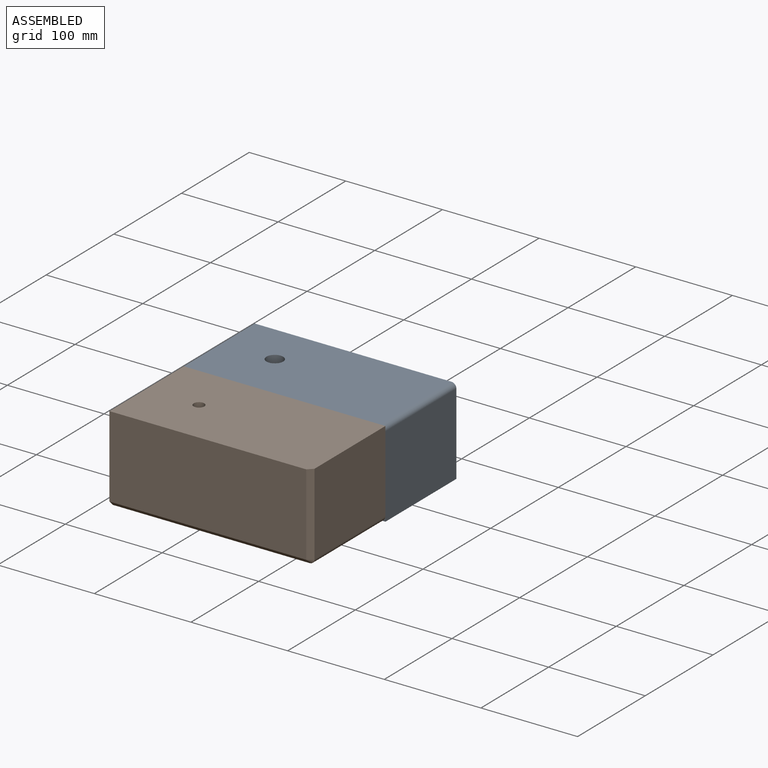
[diagram: assembled view]
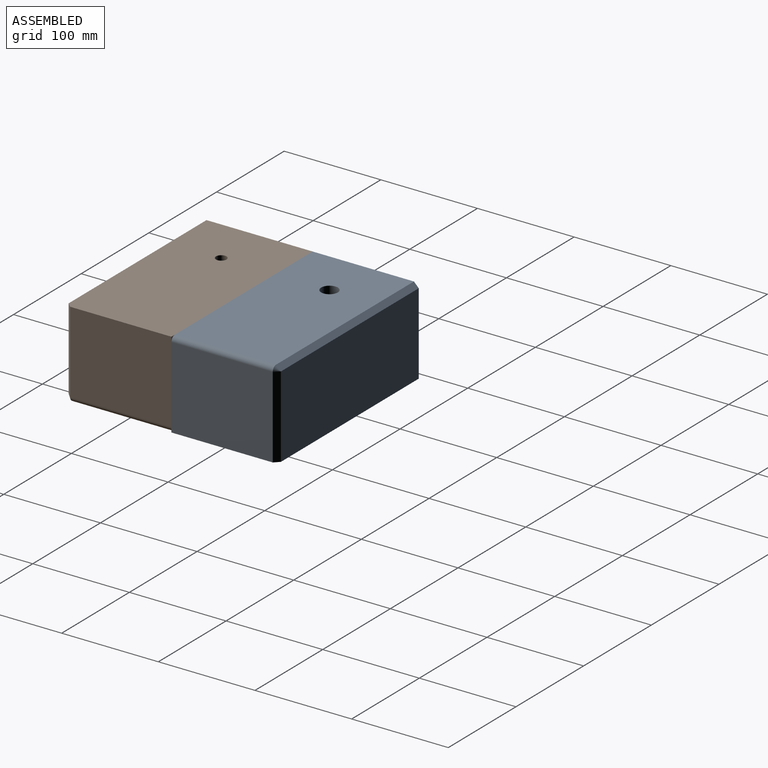
[diagram: assembled view, second angle]
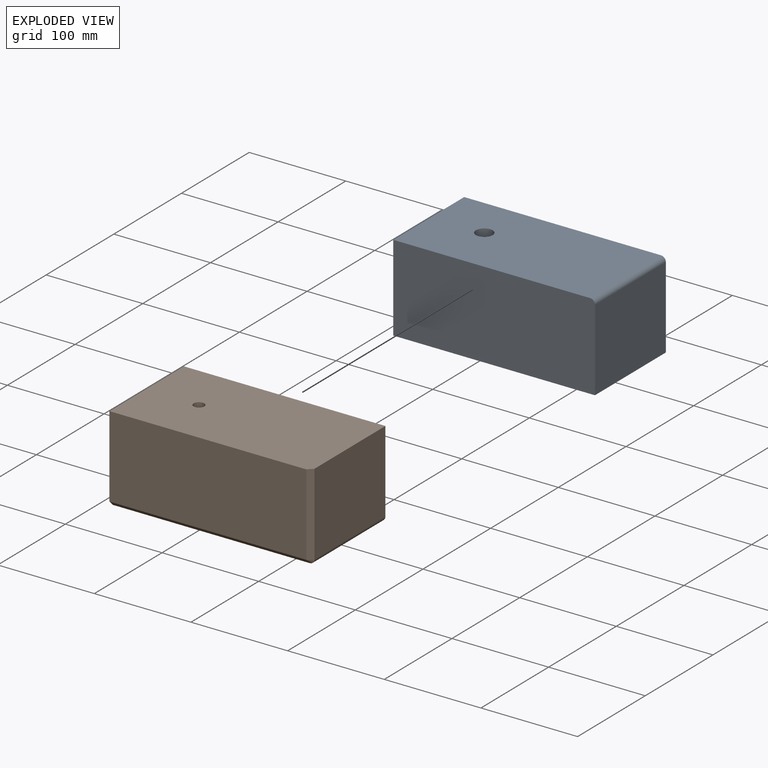
[diagram: exploded view]
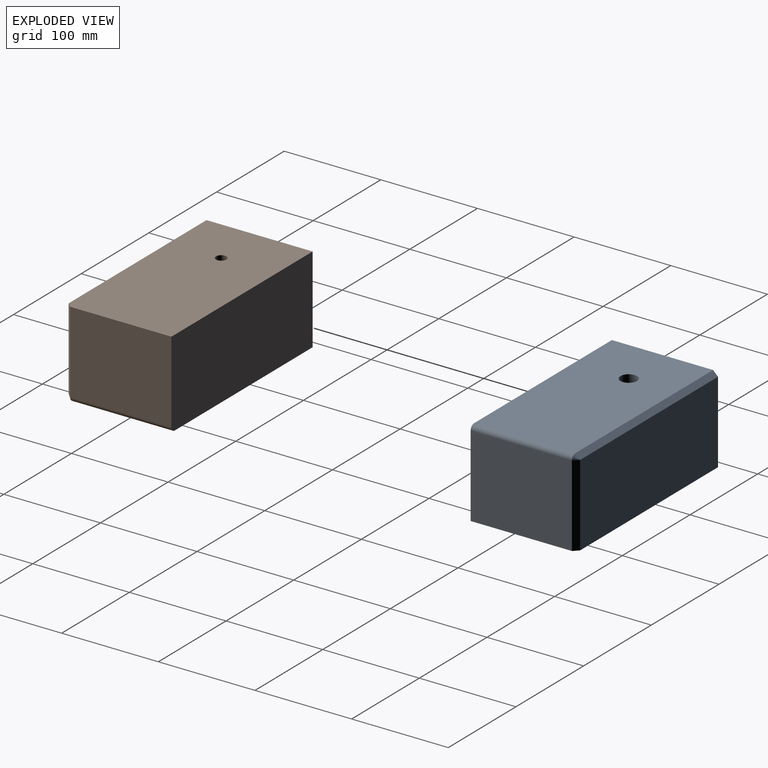
[diagram: exploded view, second angle]
ASSEMBLY  parts=2 mates=3
PART A: 13 faces, bbox 208.7x109.8x89.5 mm
  f0: plane 109.8x89.54mm, normal (-1,0,0), area 9818.7mm2, adj f1,f3,f4,f5,f10
  f1: plane 208.68x109.8mm, normal (0,0,-1), area 22805.4mm2, adj f0,f2,f4,f5,f6,f12
  f2: plane 104.8x84.54mm, normal (1,0,0), area 8859.5mm2, adj f1,f4,f9,f12
  f3: plane 203.68x104.8mm, normal (0,0,1), area 21111.8mm2, adj f0,f4,f8,f9,f10
  f4: plane 208.68x89.54mm, normal (0,-1,0), area 18679.1mm2, adj f0,f1,f2,f3,f9
  f5: plane 203.68x84.54mm, normal (0,1,0), area 17218.4mm2, adj f0,f1,f10,f12
  f6: cylinder r=5.5mm len=79.54mm, axis (0,0,1), area 2748.6mm2, adj f1,f7
  f7: plane 17.25x17.25mm, normal (0,0,1), area 138.7mm2, adj f6,f8
  f8: cylinder r=8.62mm len=17.25mm, axis (0,0,1), area 541.9mm2, adj f3,f7
  f9: cylinder r=5mm len=104.8mm, axis (0,1,0), area 823.1mm2, adj f2,f3,f4,f11
  f10: plane 203.68x5mm, normal (0,0.71,0.71), area 1440.2mm2, adj f0,f3,f5,f11
  f11: cone r=5mm half-angle=45deg, axis (0,-1,0), area 27.8mm2, adj f9,f10,f12
  f12: plane 84.54x5mm, normal (0.71,0.71,0), area 597.8mm2, adj f1,f2,f5,f11
PART B: same geometry as A
PLACE A t=(-288.44,-339.01,-31.92)mm
PLACE B rot(axis=(1,0,0),180deg) t=(-288.44,-558.61,-11)mm
MATE planar B.f4 <-> A.f4  axis (0,1,0) through (-279.05,-448.81,-21.45)mm
MATE planar A.f3 <-> B.f1  axis (0,0,1) through (-281,-396.45,23.31)mm
MATE planar A.f0 <-> B.f0  axis (-1,0,0) through (-383.36,-393.98,-21.51)mm
